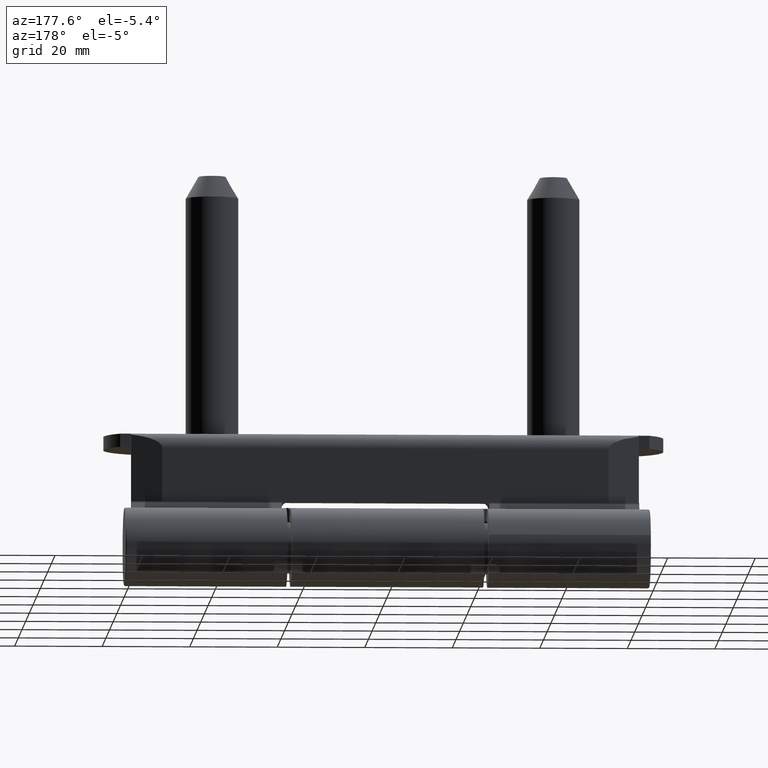
[diagram: clean part render]
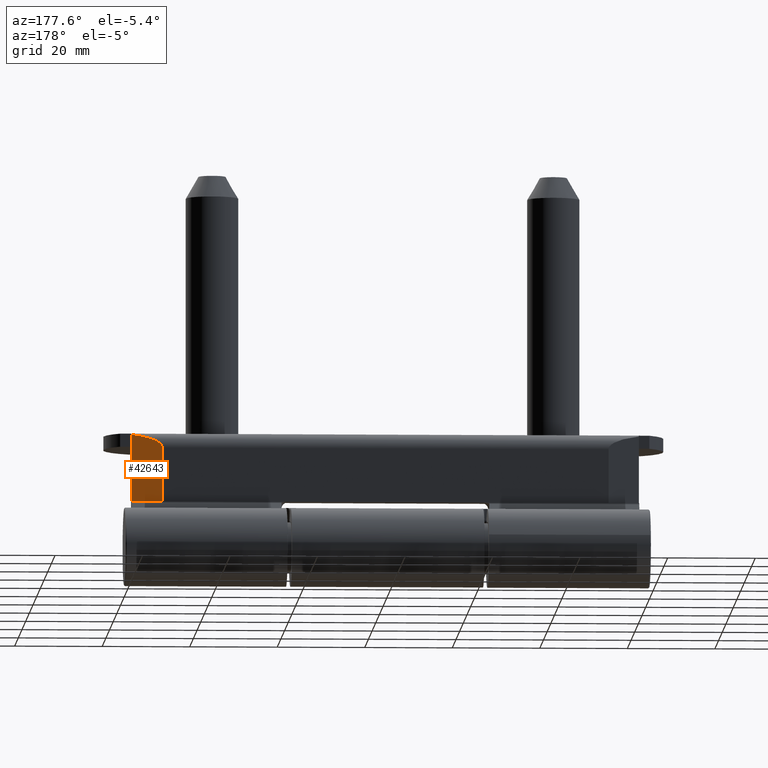
[diagram: same view with one face highlighted and labeled with its STEP entity id]
A machine part, auxiliary view. The second image highlights one B-rep face of the part: STEP entity #42643.
In plain terms, the highlighted planar face has unit normal (-0.2747, -0.9615, 0).
Its self-contained STEP definition (entity closure, byte-faithful):
#302 = DIRECTION ( 'NONE',  ( -0.2747211278973777926, 0.9615239476408232733, -7.395570986446985676E-32 ) ) ;
#490 = EDGE_CURVE ( 'NONE', #51473, #39571, #39761, .T. ) ;
#1594 = EDGE_CURVE ( 'NONE', #6313, #39571, #35914, .T. ) ;
#1940 = VECTOR ( 'NONE', #11559, 1000.000000000000114 ) ;
#2861 = VECTOR ( 'NONE', #36174, 1000.000000000000000 ) ;
#3585 = LINE ( 'NONE', #15493, #20810 ) ;
#4015 = ORIENTED_EDGE ( 'NONE', *, *, #490, .T. ) ;
#6313 = VERTEX_POINT ( 'NONE', #31240 ) ;
#7473 = CARTESIAN_POINT ( 'NONE',  ( -24.00000000000000711, -51.00000000000001421, 3.499999999999988454 ) ) ;
#8165 = AXIS2_PLACEMENT_3D ( 'NONE', #16718, #25609, #302 ) ;
#9342 = ORIENTED_EDGE ( 'NONE', *, *, #37098, .F. ) ;
#10084 = EDGE_CURVE ( 'NONE', #48077, #51473, #11884, .T. ) ;
#11559 = DIRECTION ( 'NONE',  ( 0.2747211278973778481, -0.9615239476408231623, -3.364363499376745814E-17 ) ) ;
#11884 = LINE ( 'NONE', #32014, #51917 ) ;
#14993 = CARTESIAN_POINT ( 'NONE',  ( -21.99999999999999645, -58.00000000000000711, 15.81427028705640048 ) ) ;
#15493 = CARTESIAN_POINT ( 'NONE',  ( -21.99999999999999645, -58.00000000000000711, 15.81427028705640048 ) ) ;
#16718 = CARTESIAN_POINT ( 'NONE',  ( -21.99999999999999645, -58.00000000000000711, 15.81427028705640048 ) ) ;
#20020 = CARTESIAN_POINT ( 'NONE',  ( -23.99999999999999289, -51.00000000000002132, 15.81427028705639515 ) ) ;
#20407 = FACE_OUTER_BOUND ( 'NONE', #51810, .T. ) ;
#20810 = VECTOR ( 'NONE', #47824, 1000.000000000000000 ) ;
#21980 = ORIENTED_EDGE ( 'NONE', *, *, #10084, .T. ) ;
#23847 = CARTESIAN_POINT ( 'NONE',  ( -23.25659083596935162, -53.60193207410727467, 0.9337757091153411348 ) ) ;
#25609 = DIRECTION ( 'NONE',  ( 0.9615239476408232733, 0.2747211278973777926, -1.177527224781861405E-16 ) ) ;
#25827 = ORIENTED_EDGE ( 'NONE', *, *, #1594, .F. ) ;
#26272 = ORIENTED_EDGE ( 'NONE', *, *, #27546, .F. ) ;
#27546 = EDGE_CURVE ( 'NONE', #48077, #51159, #52071, .T. ) ;
#31240 = CARTESIAN_POINT ( 'NONE',  ( -21.99999999999999645, -58.00000000000000711, 3.500000000000015987 ) ) ;
#31475 = DIRECTION ( 'NONE',  ( -1.224646799147352961E-16, 0.000000000000000000, -1.000000000000000000 ) ) ;
#32014 = CARTESIAN_POINT ( 'NONE',  ( -23.99999999999999289, -51.00000000000002132, 15.81427028705639515 ) ) ;
#32180 = CARTESIAN_POINT ( 'NONE',  ( -21.99999999999999645, -58.00000000000000711, 15.81427028705640048 ) ) ;
#35914 = LINE ( 'NONE', #14993, #2861 ) ;
#36174 = DIRECTION ( 'NONE',  ( -1.224646799147352961E-16, 0.000000000000000000, -1.000000000000000000 ) ) ;
#36565 = PLANE ( 'NONE',  #8165 ) ;
#37098 = EDGE_CURVE ( 'NONE', #51159, #6313, #3585, .T. ) ;
#37776 = CARTESIAN_POINT ( 'NONE',  ( -24.00000000000000711, -51.00000000000001421, 3.499999999999988454 ) ) ;
#39396 = CARTESIAN_POINT ( 'NONE',  ( -21.99999999999999645, -58.00000000000000711, 0.3377223398316232528 ) ) ;
#39571 = VERTEX_POINT ( 'NONE', #39396 ) ;
#39761 =( BOUNDED_CURVE ( )  B_SPLINE_CURVE ( 3, ( #7473, #51951, #23847, #40024 ),
 .UNSPECIFIED., .F., .F. ) 
 B_SPLINE_CURVE_WITH_KNOTS ( ( 4, 4 ),
 ( 0.000000000000000000, 1.127885282721258209 ),
 .UNSPECIFIED. ) 
 CURVE ( )  GEOMETRIC_REPRESENTATION_ITEM ( )  RATIONAL_B_SPLINE_CURVE ( ( 1.000000000000000000, 0.8967695031523442717, 0.8967695031523442717, 1.000000000000000000 ) ) 
 REPRESENTATION_ITEM ( '' )  );
#40024 = CARTESIAN_POINT ( 'NONE',  ( -21.99999999999999645, -58.00000000000000711, 0.3377223398316232528 ) ) ;
#42643 = ADVANCED_FACE ( 'NONE', ( #20407 ), #36565, .F. ) ;
#47824 = DIRECTION ( 'NONE',  ( -1.224646799147352961E-16, 0.000000000000000000, -1.000000000000000000 ) ) ;
#48077 = VERTEX_POINT ( 'NONE', #20020 ) ;
#48125 = CARTESIAN_POINT ( 'NONE',  ( -21.99999999999999645, -58.00000000000000711, 15.81427028705640048 ) ) ;
#51159 = VERTEX_POINT ( 'NONE', #48125 ) ;
#51473 = VERTEX_POINT ( 'NONE', #37776 ) ;
#51810 = EDGE_LOOP ( 'NONE', ( #4015, #25827, #9342, #26272, #21980 ) ) ;
#51917 = VECTOR ( 'NONE', #31475, 1000.000000000000000 ) ;
#51951 = CARTESIAN_POINT ( 'NONE',  ( -24.00000000000000355, -50.99999999999999289, 2.109208805004631149 ) ) ;
#52071 = LINE ( 'NONE', #32180, #1940 ) ;